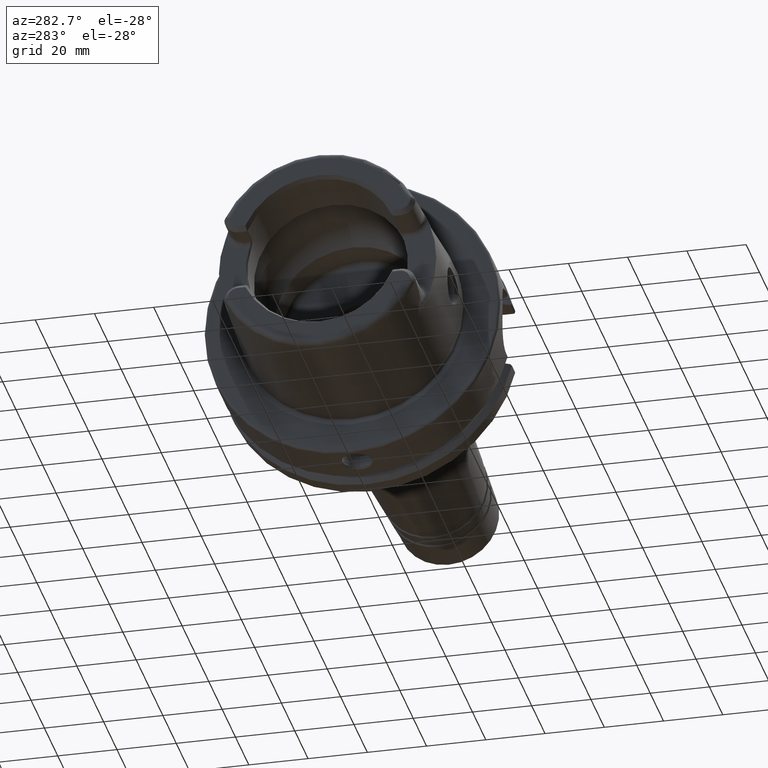
[diagram: clean part render]
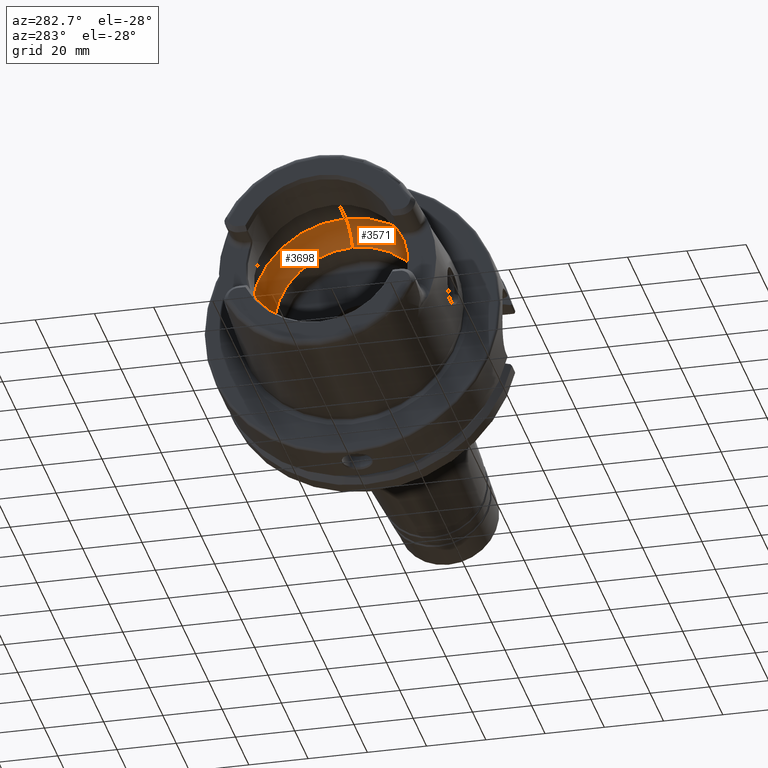
[diagram: same view with one multi-face feature highlighted, each face labeled with its STEP entity id]
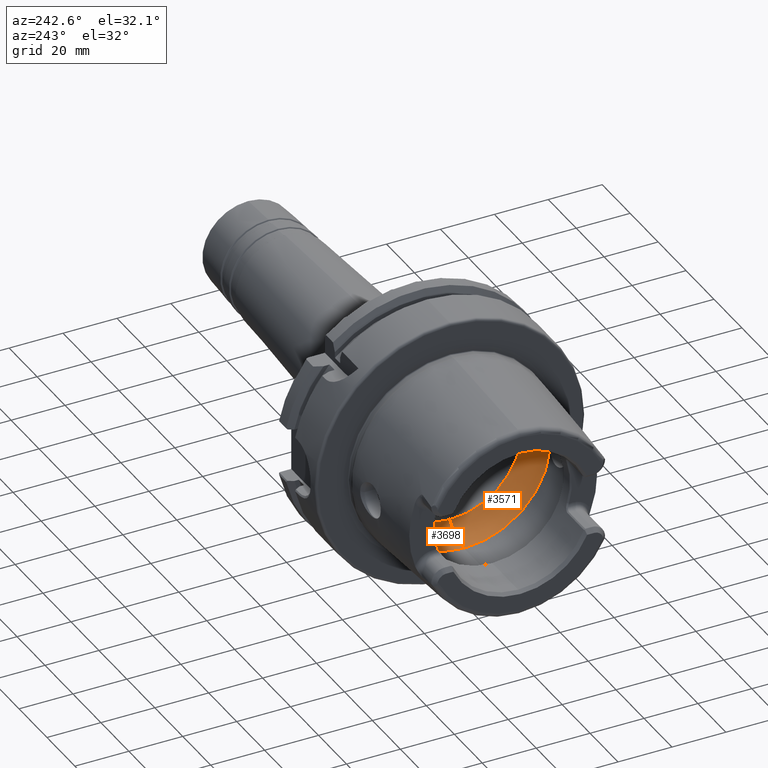
[diagram: same view with one multi-face feature highlighted, each face labeled with its STEP entity id]
A machine part, auxiliary view. The highlighted faces form ONE feature: a constant-radius fillet chain: 2 tangent blend faces with common blend radius 12 mm. The faces share edges in the B-rep.
A second angle (auxiliary view) of the same feature is appended — it is thin or edge-on in the first view.
Their STEP definitions:
[1] entity #3698 (Torus):
#227=CARTESIAN_POINT('',(3.259811553909E-1,0.E0,0.E0));
#228=DIRECTION('',(1.E0,0.E0,0.E0));
#229=DIRECTION('',(0.E0,0.E0,-1.E0));
#230=AXIS2_PLACEMENT_3D('',#227,#228,#229);
#366=CARTESIAN_POINT('',(-9.7468E0,0.E0,-1.9977801E1));
#367=DIRECTION('',(0.E0,1.E0,0.E0));
#368=DIRECTION('',(8.393984296159E-1,0.E0,-5.435165833333E-1));
#369=AXIS2_PLACEMENT_3D('',#366,#367,#368);
#371=CARTESIAN_POINT('',(-9.7468E0,0.E0,1.9977801E1));
#372=DIRECTION('',(0.E0,-1.E0,0.E0));
#373=DIRECTION('',(8.393984296159E-1,0.E0,5.435165833333E-1));
#374=AXIS2_PLACEMENT_3D('',#371,#372,#373);
#427=CARTESIAN_POINT('',(-9.7468E0,3.184612797556E1,-2.898946318923E0));
#444=CARTESIAN_POINT('',(-9.7468E0,0.E0,0.E0));
#445=DIRECTION('',(1.E0,0.E0,0.E0));
#446=DIRECTION('',(0.E0,0.E0,-1.E0));
#447=AXIS2_PLACEMENT_3D('',#444,#445,#446);
#449=CARTESIAN_POINT('',(-9.7468E0,0.E0,0.E0));
#450=DIRECTION('',(1.E0,0.E0,0.E0));
#451=DIRECTION('',(0.E0,9.958823615031E-1,9.065496151294E-2));
#452=AXIS2_PLACEMENT_3D('',#449,#450,#451);
#469=CARTESIAN_POINT('',(-9.7468E0,3.184612797556E1,2.898946318923E0));
#471=CARTESIAN_POINT('',(-9.E0,3.195454052960E1,0.E0));
#472=CARTESIAN_POINT('',(-9.E0,3.195454052960E1,-3.381119242272E-1));
#473=CARTESIAN_POINT('',(-9.057330735008E0,3.194747841027E1,-1.013009017261E0));
#474=CARTESIAN_POINT('',(-9.310459572189E0,3.191400600196E1,-1.992066362112E0));
#475=CARTESIAN_POINT('',(-9.585175880117E0,3.187278879370E1,-2.606066171047E0));
#476=CARTESIAN_POINT('',(-9.7468E0,3.184612797556E1,-2.898946318923E0));
#478=CARTESIAN_POINT('',(-9.7468E0,3.184612797556E1,2.898946318923E0));
#479=CARTESIAN_POINT('',(-9.585127357174E0,3.187279679784E1,2.605978242298E0));
#480=CARTESIAN_POINT('',(-9.310379938408E0,3.191401708557E1,1.991845080032E0));
#481=CARTESIAN_POINT('',(-9.057312584844E0,3.194748055750E1,1.012859366110E0));
#482=CARTESIAN_POINT('',(-9.E0,3.195454052960E1,3.380482648300E-1));
#483=CARTESIAN_POINT('',(-9.E0,3.195454052960E1,0.E0));
#2796=CARTESIAN_POINT('',(3.259811553909E-1,0.E0,-2.65E1));
#2797=CARTESIAN_POINT('',(3.259811553909E-1,0.E0,2.65E1));
#2798=VERTEX_POINT('',#2796);
#2799=VERTEX_POINT('',#2797);
#2800=CARTESIAN_POINT('',(-9.7468E0,0.E0,-3.1977801E1));
#2801=VERTEX_POINT('',#2800);
#2802=CARTESIAN_POINT('',(-9.7468E0,0.E0,3.1977801E1));
#2803=VERTEX_POINT('',#2802);
#3081=VERTEX_POINT('',#427);
#3083=VERTEX_POINT('',#469);
#3087=VERTEX_POINT('',#471);
#3684=CARTESIAN_POINT('',(-9.7468E0,0.E0,0.E0));
#3685=DIRECTION('',(1.E0,0.E0,0.E0));
#3686=DIRECTION('',(0.E0,0.E0,1.E0));
#3687=AXIS2_PLACEMENT_3D('',#3684,#3685,#3686);
#3688=TOROIDAL_SURFACE('',#3687,1.9977801E1,1.2E1);
#3689=ORIENTED_EDGE('',*,*,#3581,.F.);
#3690=ORIENTED_EDGE('',*,*,#3643,.F.);
#3691=ORIENTED_EDGE('',*,*,#3678,.T.);
#3692=ORIENTED_EDGE('',*,*,#3563,.F.);
#3693=ORIENTED_EDGE('',*,*,#3475,.F.);
#3694=ORIENTED_EDGE('',*,*,#3560,.T.);
#3695=ORIENTED_EDGE('',*,*,#3670,.T.);
#3696=EDGE_LOOP('',(#3689,#3690,#3691,#3692,#3693,#3694,#3695));
#3697=FACE_OUTER_BOUND('',#3696,.F.);
#3698=ADVANCED_FACE('',(#3697),#3688,.F.);
#231=CIRCLE('',#230,2.65E1);
#370=CIRCLE('',#369,1.2E1);
#375=CIRCLE('',#374,1.2E1);
#448=CIRCLE('',#447,3.1977801E1);
#453=CIRCLE('',#452,3.1977801E1);
#477=B_SPLINE_CURVE_WITH_KNOTS('',3,(#471,#472,#473,#474,#475,#476),
.UNSPECIFIED.,.F.,.F.,(4,1,1,4),(0.E0,3.333333333333E-1,6.666666666667E-1,1.E0),
.UNSPECIFIED.);
#484=B_SPLINE_CURVE_WITH_KNOTS('',3,(#478,#479,#480,#481,#482,#483),
.UNSPECIFIED.,.F.,.F.,(4,1,1,4),(0.E0,3.333333333333E-1,6.666666666667E-1,1.E0),
.UNSPECIFIED.);
#3475=EDGE_CURVE('',#2798,#2799,#231,.T.);
#3560=EDGE_CURVE('',#2798,#2801,#370,.T.);
#3563=EDGE_CURVE('',#2799,#2803,#375,.T.);
#3581=EDGE_CURVE('',#3087,#3081,#477,.T.);
#3643=EDGE_CURVE('',#3083,#3087,#484,.T.);
#3670=EDGE_CURVE('',#2801,#3081,#448,.T.);
#3678=EDGE_CURVE('',#3083,#2803,#453,.T.);
[2] entity #3571 (Torus):
#289=CARTESIAN_POINT('',(3.259811553909E-1,0.E0,0.E0));
#290=DIRECTION('',(1.E0,0.E0,0.E0));
#291=DIRECTION('',(0.E0,0.E0,1.E0));
#292=AXIS2_PLACEMENT_3D('',#289,#290,#291);
#359=CARTESIAN_POINT('',(-9.7468E0,-3.184612797556E1,-2.898946318923E0));
#360=CARTESIAN_POINT('',(-9.585175880117E0,-3.187278879370E1,
-2.606066171047E0));
#361=CARTESIAN_POINT('',(-9.310459572189E0,-3.191400600196E1,
-1.992066362112E0));
#362=CARTESIAN_POINT('',(-9.057330735008E0,-3.194747841027E1,
-1.013009017261E0));
#363=CARTESIAN_POINT('',(-9.E0,-3.195454052960E1,-3.381119242272E-1));
#364=CARTESIAN_POINT('',(-9.E0,-3.195454052960E1,0.E0));
#366=CARTESIAN_POINT('',(-9.7468E0,0.E0,-1.9977801E1));
#367=DIRECTION('',(0.E0,1.E0,0.E0));
#368=DIRECTION('',(8.393984296159E-1,0.E0,-5.435165833333E-1));
#369=AXIS2_PLACEMENT_3D('',#366,#367,#368);
#371=CARTESIAN_POINT('',(-9.7468E0,0.E0,1.9977801E1));
#372=DIRECTION('',(0.E0,-1.E0,0.E0));
#373=DIRECTION('',(8.393984296159E-1,0.E0,5.435165833333E-1));
#374=AXIS2_PLACEMENT_3D('',#371,#372,#373);
#376=CARTESIAN_POINT('',(-9.E0,-3.195454052960E1,0.E0));
#377=CARTESIAN_POINT('',(-9.E0,-3.195454052960E1,3.380482648301E-1));
#378=CARTESIAN_POINT('',(-9.057312584844E0,-3.194748055750E1,1.012859366110E0));
#379=CARTESIAN_POINT('',(-9.310379938408E0,-3.191401708557E1,1.991845080032E0));
#380=CARTESIAN_POINT('',(-9.585127357174E0,-3.187279679784E1,2.605978242298E0));
#381=CARTESIAN_POINT('',(-9.7468E0,-3.184612797556E1,2.898946318923E0));
#500=CARTESIAN_POINT('',(-9.7468E0,-3.184612797556E1,-2.898946318923E0));
#502=CARTESIAN_POINT('',(-9.7468E0,-3.184612797556E1,2.898946318923E0));
#519=CARTESIAN_POINT('',(-9.7468E0,0.E0,0.E0));
#520=DIRECTION('',(1.E0,0.E0,0.E0));
#521=DIRECTION('',(0.E0,0.E0,1.E0));
#522=AXIS2_PLACEMENT_3D('',#519,#520,#521);
#532=CARTESIAN_POINT('',(-9.7468E0,0.E0,0.E0));
#533=DIRECTION('',(1.E0,0.E0,0.E0));
#534=DIRECTION('',(0.E0,-9.958823615031E-1,-9.065496151294E-2));
#535=AXIS2_PLACEMENT_3D('',#532,#533,#534);
#2796=CARTESIAN_POINT('',(3.259811553909E-1,0.E0,-2.65E1));
#2797=CARTESIAN_POINT('',(3.259811553909E-1,0.E0,2.65E1));
#2798=VERTEX_POINT('',#2796);
#2799=VERTEX_POINT('',#2797);
#2800=CARTESIAN_POINT('',(-9.7468E0,0.E0,-3.1977801E1));
#2801=VERTEX_POINT('',#2800);
#2802=CARTESIAN_POINT('',(-9.7468E0,0.E0,3.1977801E1));
#2803=VERTEX_POINT('',#2802);
#3085=VERTEX_POINT('',#500);
#3086=VERTEX_POINT('',#502);
#3088=VERTEX_POINT('',#364);
#3551=CARTESIAN_POINT('',(-9.7468E0,0.E0,0.E0));
#3552=DIRECTION('',(1.E0,0.E0,0.E0));
#3553=DIRECTION('',(0.E0,0.E0,1.E0));
#3554=AXIS2_PLACEMENT_3D('',#3551,#3552,#3553);
#3555=TOROIDAL_SURFACE('',#3554,1.9977801E1,1.2E1);
#3557=ORIENTED_EDGE('',*,*,#3556,.F.);
#3559=ORIENTED_EDGE('',*,*,#3558,.T.);
#3561=ORIENTED_EDGE('',*,*,#3560,.F.);
#3562=ORIENTED_EDGE('',*,*,#3517,.F.);
#3564=ORIENTED_EDGE('',*,*,#3563,.T.);
#3566=ORIENTED_EDGE('',*,*,#3565,.T.);
#3568=ORIENTED_EDGE('',*,*,#3567,.F.);
#3569=EDGE_LOOP('',(#3557,#3559,#3561,#3562,#3564,#3566,#3568));
#3570=FACE_OUTER_BOUND('',#3569,.F.);
#3571=ADVANCED_FACE('',(#3570),#3555,.F.);
#293=CIRCLE('',#292,2.65E1);
#365=B_SPLINE_CURVE_WITH_KNOTS('',3,(#359,#360,#361,#362,#363,#364),
.UNSPECIFIED.,.F.,.F.,(4,1,1,4),(0.E0,3.333333333333E-1,6.666666666667E-1,1.E0),
.UNSPECIFIED.);
#370=CIRCLE('',#369,1.2E1);
#375=CIRCLE('',#374,1.2E1);
#382=B_SPLINE_CURVE_WITH_KNOTS('',3,(#376,#377,#378,#379,#380,#381),
.UNSPECIFIED.,.F.,.F.,(4,1,1,4),(0.E0,3.333333333333E-1,6.666666666667E-1,1.E0),
.UNSPECIFIED.);
#523=CIRCLE('',#522,3.1977801E1);
#536=CIRCLE('',#535,3.1977801E1);
#3517=EDGE_CURVE('',#2799,#2798,#293,.T.);
#3556=EDGE_CURVE('',#3085,#3088,#365,.T.);
#3558=EDGE_CURVE('',#3085,#2801,#536,.T.);
#3560=EDGE_CURVE('',#2798,#2801,#370,.T.);
#3563=EDGE_CURVE('',#2799,#2803,#375,.T.);
#3565=EDGE_CURVE('',#2803,#3086,#523,.T.);
#3567=EDGE_CURVE('',#3088,#3086,#382,.T.);